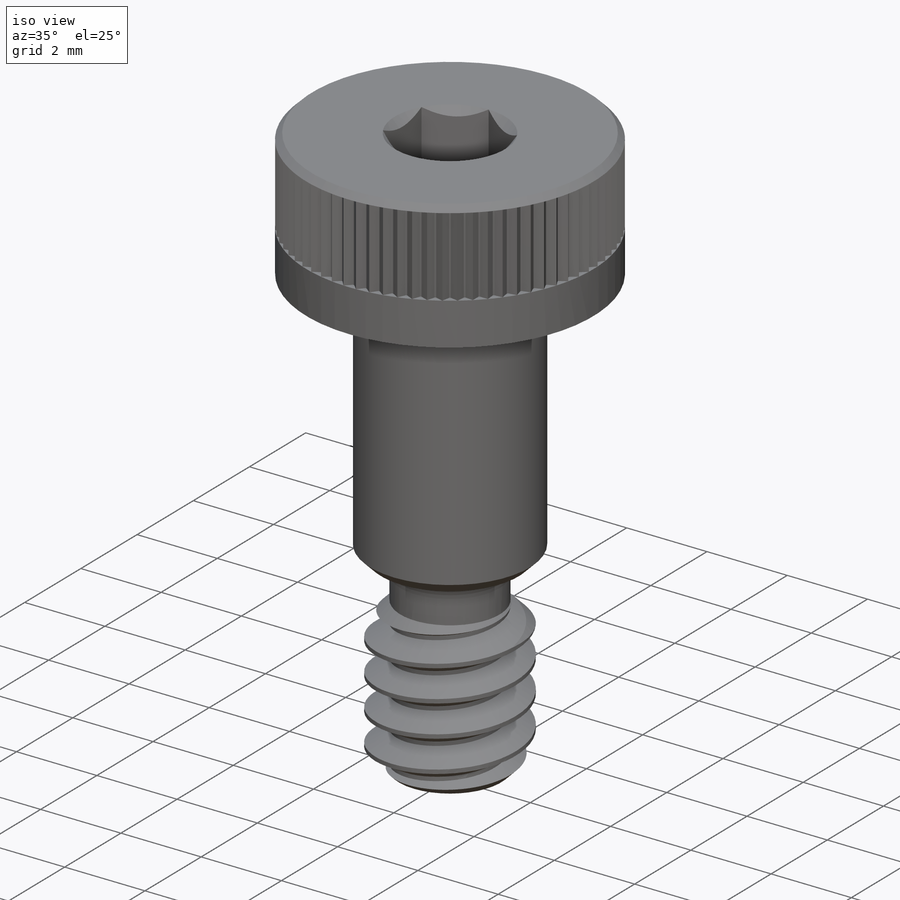
[diagram: iso view]
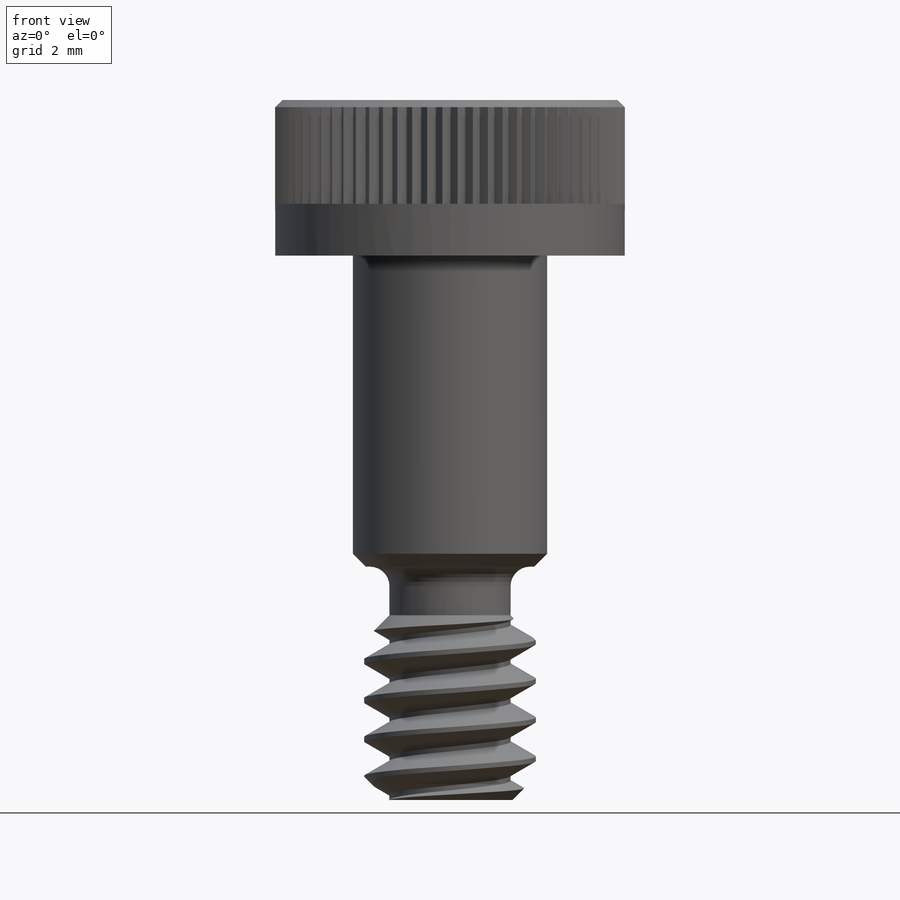
[diagram: front view]
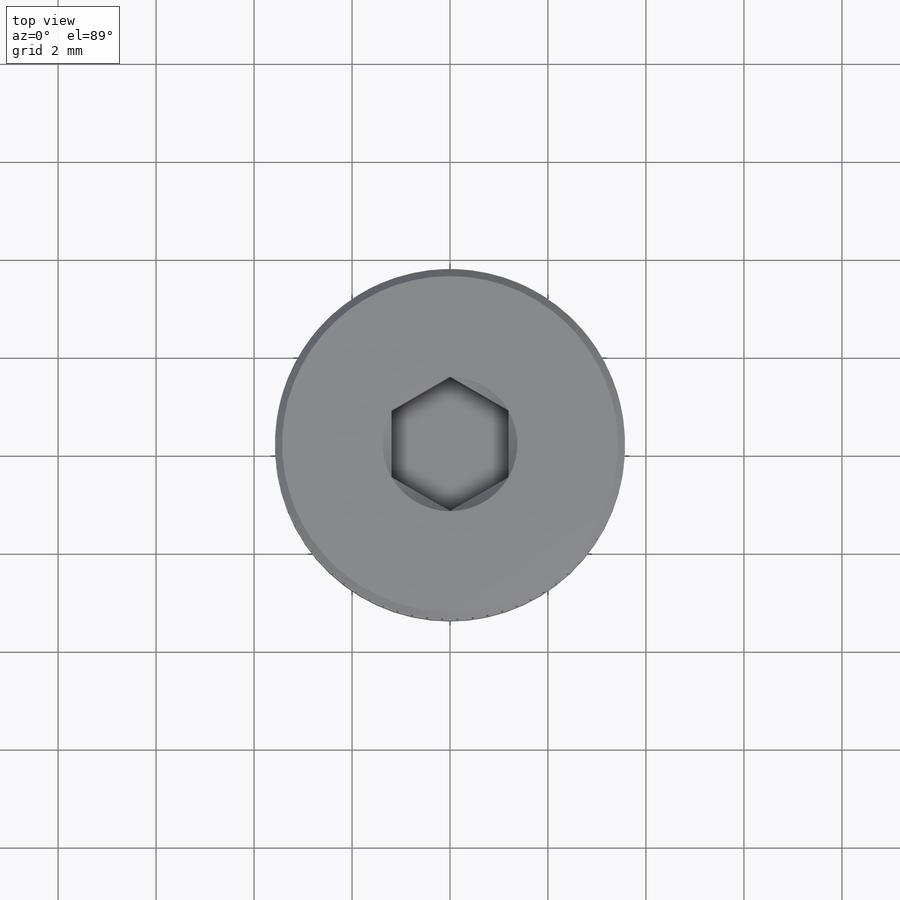
[diagram: top view]
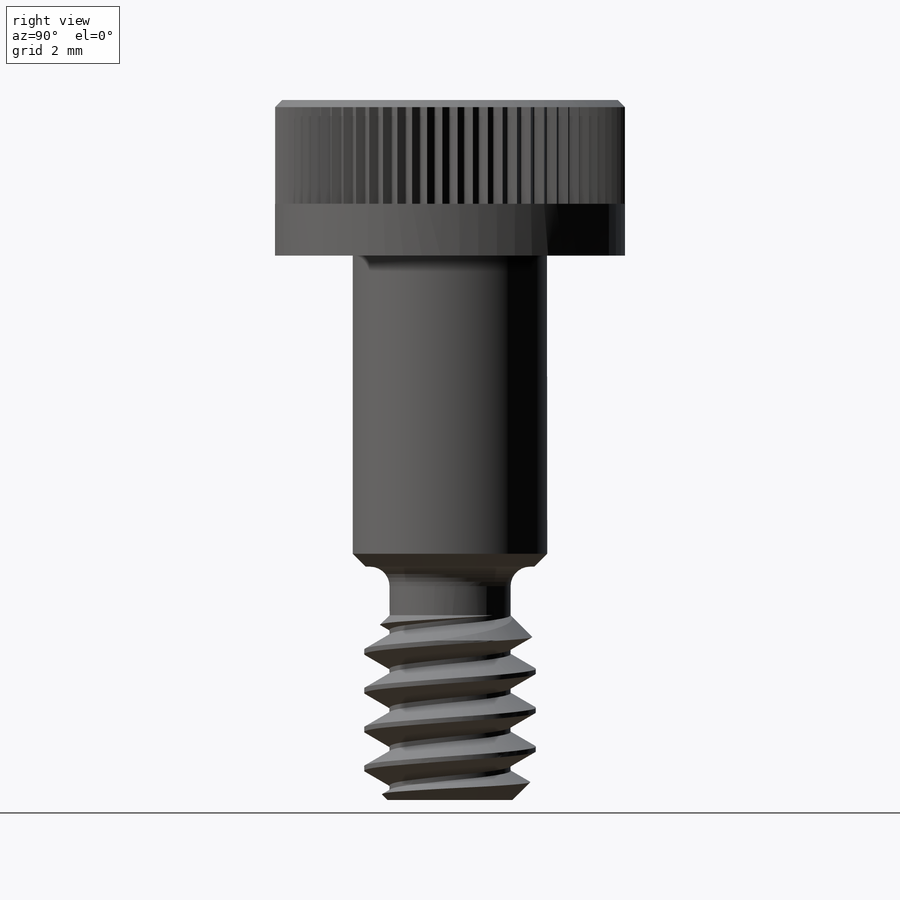
[diagram: right view]
SOLIDWORKS PART (.sldprt)
format: sldprt  version: not decoded by parser v0  size: 1,320,448 bytes
history: native  units: mm
features: sketch x11, extrude x3, cut_extrude x3, chamfer x3, material x1, helix x1, sweep x1, plane x1, pattern_circular x1, cut_revolve x1, fillet x1 (+11 scaffold rows collapsed)
feature tree (38):
  scaffold x11  (default folders/planes/origin — collapsed)
  material  "Material <not specified>"
  sketch  "Sketch1"  dims[Head Dia=~7.14375mm]
  extrude  "Extrude1"  Depth=3.175mm Head Ht=3.175mm
  sketch  "Sketch2"  dims[Hex Key=~2.38125mm D1=~4.582718mm]
  cut_extrude  "Cut-Extrude1"  Depth=1.5875mm
  sketch  "Sketch4"  dims[Shoulder Dia=~3.96875mm]
  extrude  "Extrude2"  Depth=6.35mm Shoulder Length=6.35mm
  sketch  "Sketch5"  dims[Thread Dia=3.5052mm]
  extrude  "Extrude3"  Depth=4.7625mm Thread Length=4.7625mm
  chamfer  "Chamfer1"  Distance=0.47625mm Angle=45deg
  sketch  "Sketch12"
  helix  "Helix/Spiral1"  Pitch=4.7625mm Thread Pitch =0.79375mm
  sketch  "Sketch13"  dims[c1.D1=~1.910764mm c2.D1=60.0deg c2.D2=~0.099219mm c2.D3=~0.396875mm]
  sweep  "Cut-Sweep1"
  plane  "Plane1"  Offset=2.116667mm
  sketch  "Sketch10"  dims[c1.D4=~0.032657mm c1.D1=~11.293235mm c2.D1=20.0deg c3.D1=~0.981895mm c4.D1=90.0deg c4.D2=~11.925286mm c5.D2=5.0deg c5.D3=~0.052296mm c5.D5=~0.145676mm]
  cut_extrude  "Cut-Extrude3"  Depth=0.145676mm
  chamfer  "Chamfer3"  Distance=0.145676mm Angle=45deg
  pattern_circular  "CirPattern2"  Count=72 Angle=360deg
  sketch  "Sketch14"
  sketch  "Sketch15"  dims[D1=~2.182812mm]
  sketch  "Sketch16"  dims[c1.D1=~0.992188mm c1.D2=2.54mm c2.D2=45.0deg]
  cut_revolve  "Cut-Revolve8"  Angle=360deg
  fillet  "Fillet1"  Radius=0.396875mm
  chamfer  "Chamfer2"  Distance=0.264583mm Angle=45deg
  sketch  "Sketch17"
  cut_extrude  "Extrude4"  [1 undecoded]
decode coverage: 20 of 25 modeling features carry decoded parameters
note: ~ marks probable driven/reference dimensions
note: 1 parameter value undecoded
note: suppression state not decoded; provenance and decode notes live in map.json
